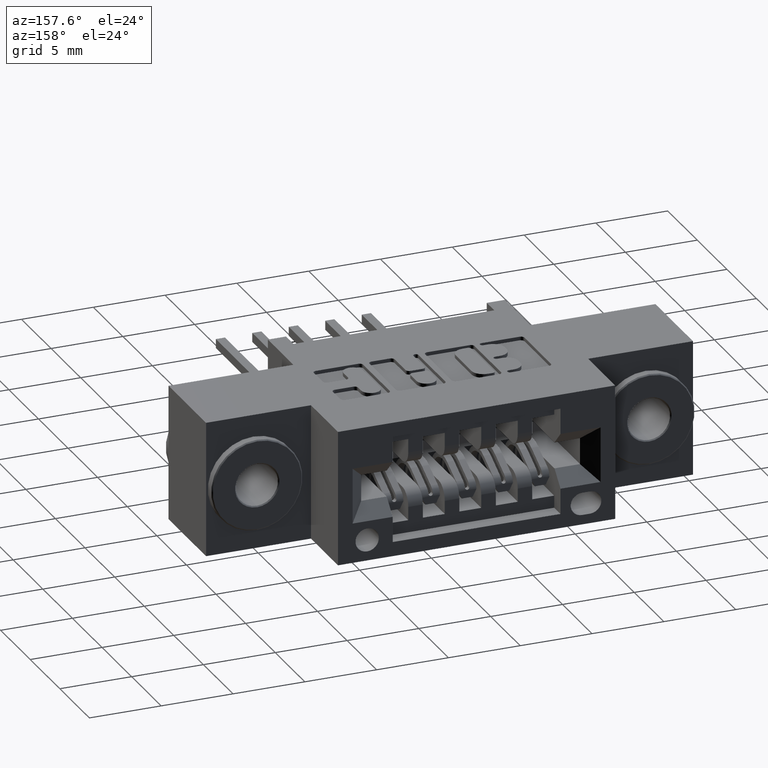
[diagram: clean part render]
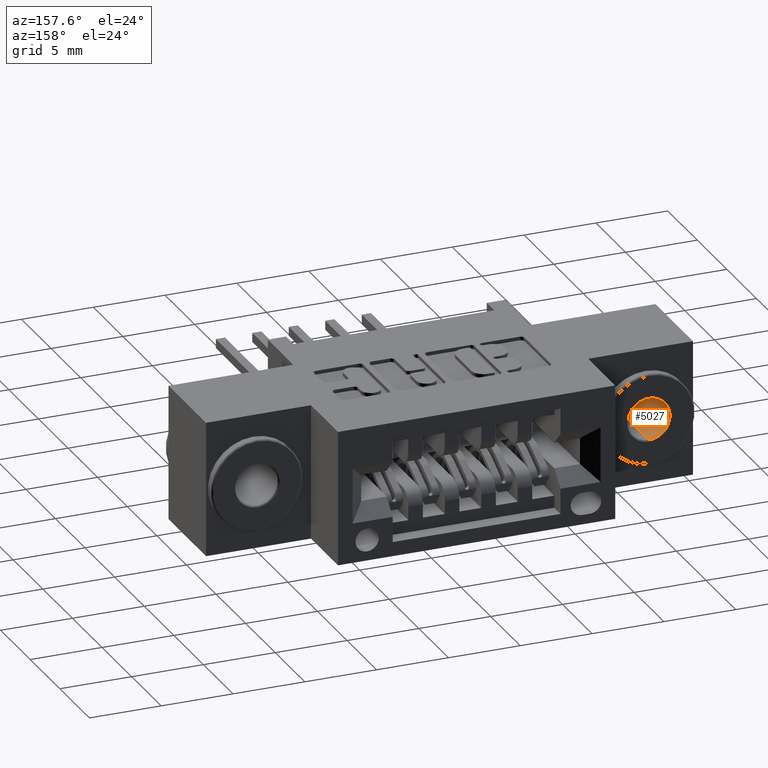
[diagram: same view with one face highlighted and labeled with its STEP entity id]
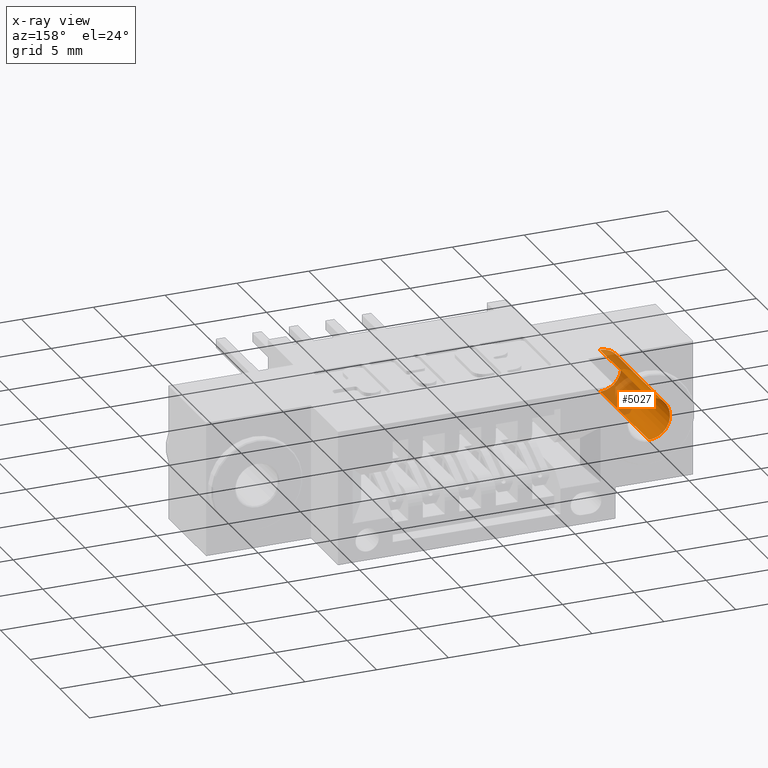
[diagram: x-ray of the same camera — body ghosted, the highlighted face saturated]
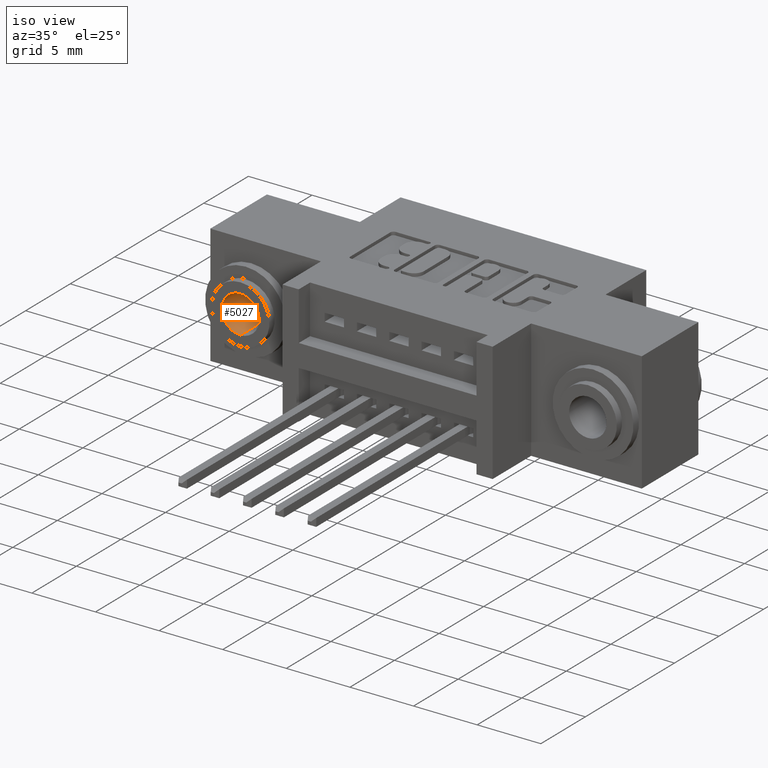
[diagram: same view with one face highlighted and labeled with its STEP entity id]
A machine part, auxiliary view. The second image highlights one B-rep face of the part: STEP entity #5027.
The next image is the same camera in x-ray: the body ghosted, the highlighted face saturated — about 43% of this face is hidden behind the body in this view.
A second angle (iso view) of the same face is appended — the face is thin or edge-on in the first view.
In plain terms, the highlighted cylindrical surface (edge-blend (fillet) strip) has radius 1.4732 mm, axis along (-0, -1, 0).
Its self-contained STEP definition (entity closure, byte-faithful):
#105 = DIRECTION ( 'NONE',  ( 2.465190328815661900E-032, -1.000000000000000000, -0.0000000000000000000 ) ) ;
#142 = CARTESIAN_POINT ( 'NONE',  ( 0.0000000000000000000, 0.002999999999999804000, 0.0000000000000000000 ) ) ;
#235 = AXIS2_PLACEMENT_3D ( 'NONE', #8398, #9232, #2559 ) ;
#482 = ORIENTED_EDGE ( 'NONE', *, *, #7610, .T. ) ;
#647 = DIRECTION ( 'NONE',  ( -2.465190328815661900E-032, 1.000000000000000000, 0.0000000000000000000 ) ) ;
#706 = EDGE_CURVE ( 'NONE', #6355, #4693, #4296, .T. ) ;
#1025 = ORIENTED_EDGE ( 'NONE', *, *, #4419, .T. ) ;
#1387 = EDGE_LOOP ( 'NONE', ( #6449, #1025, #482, #2094 ) ) ;
#1639 = VECTOR ( 'NONE', #8402, 39.37007874015748100 ) ;
#2094 = ORIENTED_EDGE ( 'NONE', *, *, #706, .T. ) ;
#2559 = DIRECTION ( 'NONE',  ( -3.408749858497505200E-034, 0.0000000000000000000, 1.000000000000000000 ) ) ;
#3079 = VERTEX_POINT ( 'NONE', #5383 ) ;
#3461 = EDGE_CURVE ( 'NONE', #5865, #4693, #8326, .T. ) ;
#4296 = CIRCLE ( 'NONE', #6811, 0.05800000000000000300 ) ;
#4388 = CARTESIAN_POINT ( 'NONE',  ( -1.977074917928553200E-035, -0.1640487732352790300, 0.05800000000000000300 ) ) ;
#4419 = EDGE_CURVE ( 'NONE', #5865, #3079, #6915, .T. ) ;
#4693 = VERTEX_POINT ( 'NONE', #9384 ) ;
#5027 = ADVANCED_FACE ( 'NONE', ( #9457 ), #7363, .F. ) ;
#5126 = VECTOR ( 'NONE', #647, 39.37007874015748100 ) ;
#5136 = CARTESIAN_POINT ( 'NONE',  ( 7.102951435054640600E-018, 0.002999999999999804000, -0.05800000000000000300 ) ) ;
#5383 = CARTESIAN_POINT ( 'NONE',  ( -1.977074917928553200E-035, 0.002999999999999804000, 0.05800000000000000300 ) ) ;
#5865 = VERTEX_POINT ( 'NONE', #5136 ) ;
#6046 = CARTESIAN_POINT ( 'NONE',  ( 0.0000000000000000000, 0.3279999999999999000, 0.0000000000000000000 ) ) ;
#6076 = AXIS2_PLACEMENT_3D ( 'NONE', #142, #105, #8969 ) ;
#6355 = VERTEX_POINT ( 'NONE', #8525 ) ;
#6449 = ORIENTED_EDGE ( 'NONE', *, *, #3461, .F. ) ;
#6745 = CARTESIAN_POINT ( 'NONE',  ( 7.102951435054649800E-018, -0.1640487732352790300, -0.05800000000000000300 ) ) ;
#6811 = AXIS2_PLACEMENT_3D ( 'NONE', #6046, #8181, #7441 ) ;
#6915 = CIRCLE ( 'NONE', #6076, 0.05800000000000000300 ) ;
#7363 = CYLINDRICAL_SURFACE ( 'NONE', #235, 0.05800000000000000300 ) ;
#7441 = DIRECTION ( 'NONE',  ( -3.408749858497505200E-034, 0.0000000000000000000, 1.000000000000000000 ) ) ;
#7610 = EDGE_CURVE ( 'NONE', #3079, #6355, #8260, .T. ) ;
#8181 = DIRECTION ( 'NONE',  ( -2.465190328815661900E-032, 1.000000000000000000, 0.0000000000000000000 ) ) ;
#8260 = LINE ( 'NONE', #4388, #5126 ) ;
#8326 = LINE ( 'NONE', #6745, #1639 ) ;
#8398 = CARTESIAN_POINT ( 'NONE',  ( 0.0000000000000000000, -0.1640487732352790300, 0.0000000000000000000 ) ) ;
#8402 = DIRECTION ( 'NONE',  ( -2.465190328815661900E-032, 1.000000000000000000, 0.0000000000000000000 ) ) ;
#8525 = CARTESIAN_POINT ( 'NONE',  ( -1.977074917928553200E-035, 0.3279999999999999000, 0.05800000000000000300 ) ) ;
#8969 = DIRECTION ( 'NONE',  ( -3.408749858497505200E-034, 0.0000000000000000000, 1.000000000000000000 ) ) ;
#9232 = DIRECTION ( 'NONE',  ( -2.465190328815661900E-032, 1.000000000000000000, 0.0000000000000000000 ) ) ;
#9384 = CARTESIAN_POINT ( 'NONE',  ( 7.102951435054640600E-018, 0.3279999999999999000, -0.05800000000000000300 ) ) ;
#9457 = FACE_OUTER_BOUND ( 'NONE', #1387, .T. ) ;